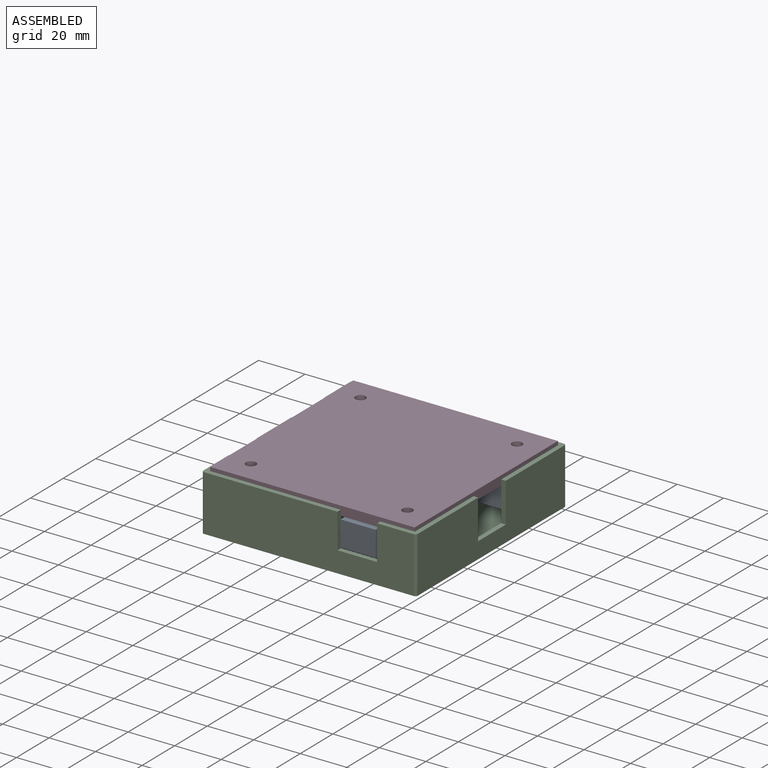
[diagram: assembled view]
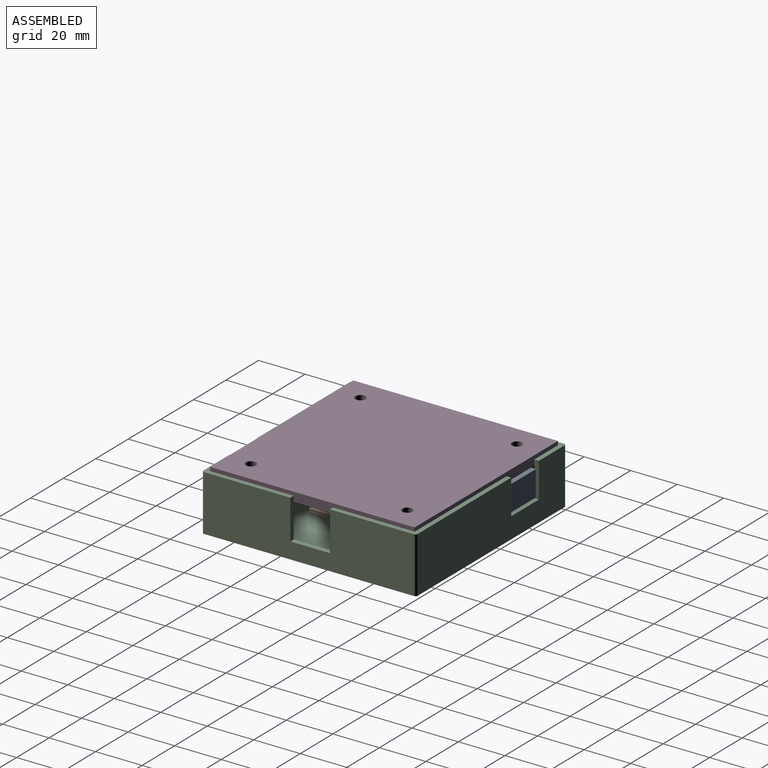
[diagram: assembled view, second angle]
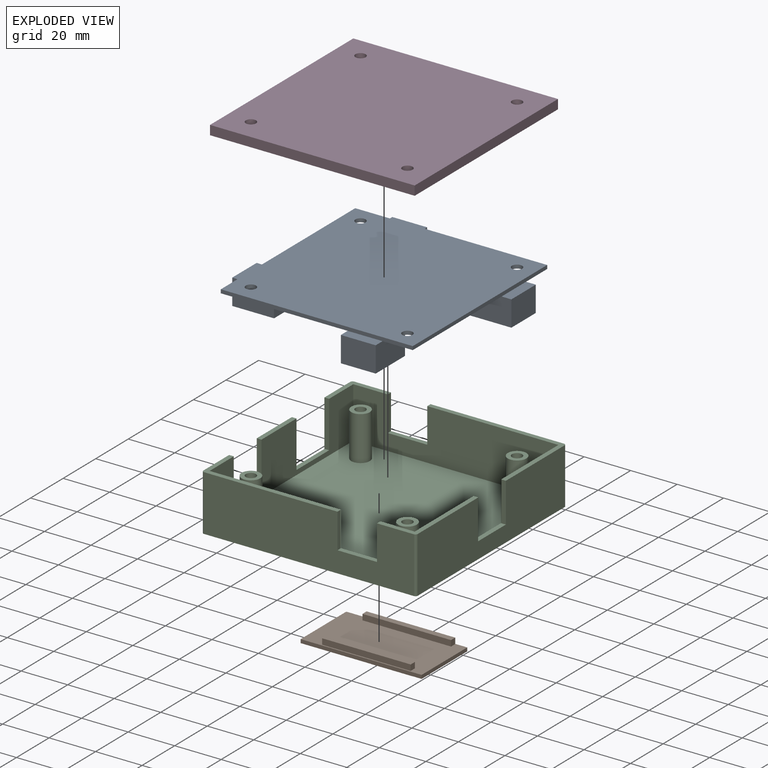
[diagram: exploded view]
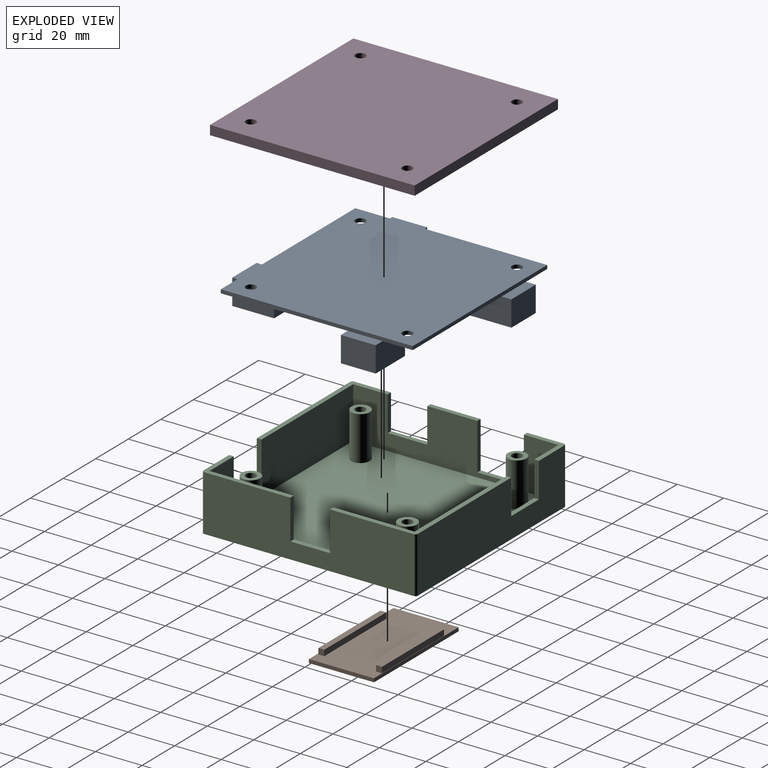
[diagram: exploded view, second angle]
ASSEMBLY  parts=4 mates=3
PART A: 104 faces, bbox 91x91x12.6 mm
  f0: plane 82.55x82.55mm, normal (0,0,1), area 5732.1mm2, adj f1,f2,f3,f4,f5,f6,f7,f8
  f1: plane 82.55x1.55mm, normal (-1,0,0), area 128mm2, adj f0,f2,f7,f9,f21
  f2: plane 82.55x1.55mm, normal (0,-1,0), area 128mm2, adj f0,f1,f3,f9,f15
  f3: plane 82.55x1.55mm, normal (1,0,0), area 128mm2, adj f0,f2,f7,f9,f28
  f4: cylinder r=2.2mm len=4.4mm, axis (0,0,1), area 21.4mm2, adj f0,f9
  f5: cylinder r=2.2mm len=4.4mm, axis (0,0,1), area 21.4mm2, adj f0,f9
  f6: cylinder r=2.2mm len=4.4mm, axis (0,0,1), area 21.4mm2, adj f0,f9
  f7: plane 82.55x1.55mm, normal (0,1,0), area 128mm2, adj f0,f1,f3,f9,f22
  f8: cylinder r=2.2mm len=4.4mm, axis (0,0,1), area 21.4mm2, adj f0,f9
  f9: plane 82.55x82.55mm, normal (0,0,-1), area 6753.7mm2, adj f1,f2,f3,f4,f5,f6,f7,f8
  f10: plane 15x11mm, normal (0,1,0), area 165mm2, adj f0,f11,f13,f14
  f11: plane 18x11mm, normal (-1,0,0), area 198mm2, adj f0,f10,f12,f14,f15
  f12: plane 15x11mm, normal (0,-1,0), area 165mm2, adj f11,f13,f14,f15
  f13: plane 18x11mm, normal (1,0,0), area 198mm2, adj f0,f10,f12,f14,f15
  f14: plane 18x15mm, normal (0,0,1), area 270mm2, adj f10,f11,f12,f13
  f15: plane 15x4.2mm, normal (0,0,-1), area 63mm2, adj f2,f11,f12,f13
  f16: plane 15x11mm, normal (1,0,0), area 165mm2, adj f0,f17,f19,f20
  f17: plane 18x11mm, normal (0,1,0), area 198mm2, adj f0,f16,f18,f20,f21
  f18: plane 15x11mm, normal (-1,0,0), area 165mm2, adj f17,f19,f20,f21
  f19: plane 18x11mm, normal (0,-1,0), area 198mm2, adj f0,f16,f18,f20,f21
  f20: plane 18x15mm, normal (0,0,1), area 270mm2, adj f16,f17,f18,f19
  f21: plane 15x4.2mm, normal (0,0,-1), area 63mm2, adj f1,f17,f18,f19
  f22: plane 15x4.2mm, normal (0,0,-1), area 63mm2, adj f7,f23,f25,f26
  f23: plane 18x11mm, normal (-1,0,0), area 198mm2, adj f0,f22,f24,f26,f27
  f24: plane 15x11mm, normal (0,-1,0), area 165mm2, adj f0,f23,f25,f27
  f25: plane 18x11mm, normal (1,0,0), area 198mm2, adj f0,f22,f24,f26,f27
  f26: plane 15x11mm, normal (0,1,0), area 165mm2, adj f22,f23,f25,f27
  f27: plane 18x15mm, normal (0,0,1), area 270mm2, adj f23,f24,f25,f26
  f28: plane 15x4.2mm, normal (0,0,-1), area 63mm2, adj f3,f29,f31,f32
  f29: plane 18x11mm, normal (0,1,0), area 198mm2, adj f0,f28,f30,f32,f33
  f30: plane 15x11mm, normal (-1,0,0), area 165mm2, adj f0,f29,f31,f33
  f31: plane 18x11mm, normal (0,-1,0), area 198mm2, adj f0,f28,f30,f32,f33
  f32: plane 15x11mm, normal (1,0,0), area 165mm2, adj f28,f29,f31,f33
  f33: plane 18x15mm, normal (0,0,1), area 270mm2, adj f29,f30,f31,f32
  f34: plane 8x2.54mm, normal (1,0,0), area 20.3mm2, adj f0,f35,f51,f53
  f35: plane 38.1x8mm, normal (0,1,0), area 304.8mm2, adj f0,f34,f36,f53
  f36: plane 8x2.54mm, normal (-1,0,0), area 20.3mm2, adj f0,f35,f51,f53
  f37: cylinder r=0.5mm len=6.5mm, axis (0,0,-1), area 20.4mm2, adj f53,f75
  f38: cylinder r=0.5mm len=6.5mm, axis (0,0,-1), area 20.4mm2, adj f53,f76
  f39: cylinder r=0.5mm len=6.5mm, axis (0,0,-1), area 20.4mm2, adj f53,f77
  f40: cylinder r=0.5mm len=6.5mm, axis (0,0,-1), area 20.4mm2, adj f53,f78
  f41: cylinder r=0.5mm len=6.5mm, axis (0,0,-1), area 20.4mm2, adj f53,f79
  f42: cylinder r=0.5mm len=6.5mm, axis (0,0,-1), area 20.4mm2, adj f53,f80
  f43: cylinder r=0.5mm len=6.5mm, axis (0,0,-1), area 20.4mm2, adj f53,f81
  f44: cylinder r=0.5mm len=6.5mm, axis (0,0,-1), area 20.4mm2, adj f53,f82
  f45: cylinder r=0.5mm len=6.5mm, axis (0,0,-1), area 20.4mm2, adj f53,f83
  f46: cylinder r=0.5mm len=6.5mm, axis (0,0,-1), area 20.4mm2, adj f53,f84
  f47: cylinder r=0.5mm len=6.5mm, axis (0,0,-1), area 20.4mm2, adj f53,f85
  f48: cylinder r=0.5mm len=6.5mm, axis (0,0,-1), area 20.4mm2, adj f53,f86
  f49: cylinder r=0.5mm len=6.5mm, axis (0,0,-1), area 20.4mm2, adj f53,f87
  f50: cylinder r=0.5mm len=6.5mm, axis (0,0,-1), area 20.4mm2, adj f53,f88
  f51: plane 38.1x8mm, normal (0,-1,0), area 304.8mm2, adj f0,f34,f36,f53
  f52: cylinder r=0.5mm len=6.5mm, axis (0,0,-1), area 20.4mm2, adj f53,f74
  f53: plane 38.1x2.54mm, normal (0,0,1), area 85mm2, adj f34,f35,f36,f37,f38,f39,f40,f41
  f54: plane 38.1x8mm, normal (0,-1,0), area 304.8mm2, adj f0,f55,f70,f73
  f55: plane 8x2.54mm, normal (1,0,0), area 20.3mm2, adj f0,f54,f56,f73
  f56: plane 38.1x8mm, normal (0,1,0), area 304.8mm2, adj f0,f55,f70,f73
  f57: cylinder r=0.5mm len=6.5mm, axis (0,0,-1), area 20.4mm2, adj f73,f91
  f58: cylinder r=0.5mm len=6.5mm, axis (0,0,-1), area 20.4mm2, adj f73,f96
  f59: cylinder r=0.5mm len=6.5mm, axis (0,0,-1), area 20.4mm2, adj f73,f97
  f60: cylinder r=0.5mm len=6.5mm, axis (0,0,-1), area 20.4mm2, adj f73,f90
  f61: cylinder r=0.5mm len=6.5mm, axis (0,0,-1), area 20.4mm2, adj f73,f101
  f62: cylinder r=0.5mm len=6.5mm, axis (0,0,-1), area 20.4mm2, adj f73,f92
  f63: cylinder r=0.5mm len=6.5mm, axis (0,0,-1), area 20.4mm2, adj f73,f99
  f64: cylinder r=0.5mm len=6.5mm, axis (0,0,-1), area 20.4mm2, adj f73,f102
  f65: cylinder r=0.5mm len=6.5mm, axis (0,0,-1), area 20.4mm2, adj f73,f95
  f66: cylinder r=0.5mm len=6.5mm, axis (0,0,-1), area 20.4mm2, adj f73,f94
  f67: cylinder r=0.5mm len=6.5mm, axis (0,0,-1), area 20.4mm2, adj f73,f89
  f68: cylinder r=0.5mm len=6.5mm, axis (0,0,-1), area 20.4mm2, adj f73,f100
  f69: cylinder r=0.5mm len=6.5mm, axis (0,0,-1), area 20.4mm2, adj f73,f93
  f70: plane 8x2.54mm, normal (-1,0,0), area 20.3mm2, adj f0,f54,f56,f73
  f71: cylinder r=0.5mm len=6.5mm, axis (0,0,-1), area 20.4mm2, adj f73,f98
  f72: cylinder r=0.5mm len=6.5mm, axis (0,0,-1), area 20.4mm2, adj f73,f103
  f73: plane 38.1x2.54mm, normal (0,0,1), area 85mm2, adj f54,f55,f56,f57,f58,f59,f60,f61
  f74: plane 1x1mm, normal (0,0,1), area 0.8mm2, adj f52
  f75: plane 1x1mm, normal (0,0,1), area 0.8mm2, adj f37
  f76: plane 1x1mm, normal (0,0,1), area 0.8mm2, adj f38
  f77: plane 1x1mm, normal (0,0,1), area 0.8mm2, adj f39
  f78: plane 1x1mm, normal (0,0,1), area 0.8mm2, adj f40
  f79: plane 1x1mm, normal (0,0,1), area 0.8mm2, adj f41
  f80: plane 1x1mm, normal (0,0,1), area 0.8mm2, adj f42
  f81: plane 1x1mm, normal (0,0,1), area 0.8mm2, adj f43
  f82: plane 1x1mm, normal (0,0,1), area 0.8mm2, adj f44
  f83: plane 1x1mm, normal (0,0,1), area 0.8mm2, adj f45
  f84: plane 1x1mm, normal (0,0,1), area 0.8mm2, adj f46
  f85: plane 1x1mm, normal (0,0,1), area 0.8mm2, adj f47
  f86: plane 1x1mm, normal (0,0,1), area 0.8mm2, adj f48
  f87: plane 1x1mm, normal (0,0,1), area 0.8mm2, adj f49
  f88: plane 1x1mm, normal (0,0,1), area 0.8mm2, adj f50
  f89: plane 1x1mm, normal (0,0,1), area 0.8mm2, adj f67
  f90: plane 1x1mm, normal (0,0,1), area 0.8mm2, adj f60
  f91: plane 1x1mm, normal (0,0,1), area 0.8mm2, adj f57
  f92: plane 1x1mm, normal (0,0,1), area 0.8mm2, adj f62
  f93: plane 1x1mm, normal (0,0,1), area 0.8mm2, adj f69
  f94: plane 1x1mm, normal (0,0,1), area 0.8mm2, adj f66
  f95: plane 1x1mm, normal (0,0,1), area 0.8mm2, adj f65
  f96: plane 1x1mm, normal (0,0,1), area 0.8mm2, adj f58
  f97: plane 1x1mm, normal (0,0,1), area 0.8mm2, adj f59
  f98: plane 1x1mm, normal (0,0,1), area 0.8mm2, adj f71
  f99: plane 1x1mm, normal (0,0,1), area 0.8mm2, adj f63
  f100: plane 1x1mm, normal (0,0,1), area 0.8mm2, adj f68
  f101: plane 1x1mm, normal (0,0,1), area 0.8mm2, adj f61
  f102: plane 1x1mm, normal (0,0,1), area 0.8mm2, adj f64
  f103: plane 1x1mm, normal (0,0,1), area 0.8mm2, adj f72
PART B: 25 faces, bbox 52x28x7.5 mm
  f0: plane 52x28mm, normal (0,0,1), area 1262.5mm2, adj f1,f2,f3,f4,f6,f7,f8,f9
  f1: plane 52x1.55mm, normal (0,-1,0), area 80.6mm2, adj f0,f2,f4,f5
  f2: plane 28x1.55mm, normal (1,0,0), area 43.4mm2, adj f0,f1,f3,f5
  f3: plane 52x1.55mm, normal (0,1,0), area 80.6mm2, adj f0,f2,f4,f5
  f4: plane 28x4mm, normal (-1,0,0), area 60.5mm2, adj f0,f1,f3,f5,f21,f22,f24
  f5: plane 52x28mm, normal (0,0,-1), area 1133mm2, adj f1,f2,f3,f4,f17,f18,f19,f20
  f6: plane 2.54x2.5mm, normal (1,0,0), area 6.4mm2, adj f0,f7,f9,f10
  f7: plane 38.1x2.5mm, normal (0,1,0), area 95.3mm2, adj f0,f6,f8,f10
  f8: plane 2.54x2.5mm, normal (-1,0,0), area 6.4mm2, adj f0,f7,f9,f10
  f9: plane 38.1x2.5mm, normal (0,-1,0), area 95.3mm2, adj f0,f6,f8,f10
  f10: plane 38.1x2.54mm, normal (0,0,1), area 96.8mm2, adj f6,f7,f8,f9
  f11: plane 38.1x2.5mm, normal (0,1,0), area 95.3mm2, adj f0,f12,f14,f15
  f12: plane 2.54x2.5mm, normal (-1,0,0), area 6.3mm2, adj f0,f11,f13,f15
  f13: plane 38.1x2.5mm, normal (0,-1,0), area 95.3mm2, adj f0,f12,f14,f15
  f14: plane 2.54x2.5mm, normal (1,0,0), area 6.3mm2, adj f0,f11,f13,f15
  f15: plane 38.1x2.54mm, normal (0,0,1), area 96.8mm2, adj f11,f12,f13,f14
  f16: plane 18x16mm, normal (0,0,-1), area 288mm2, adj f17,f18,f19,f20
  f17: plane 16x3.45mm, normal (1,0,0), area 55.2mm2, adj f5,f16,f18,f20
  f18: plane 18x3.45mm, normal (0,-1,0), area 62.1mm2, adj f5,f16,f17,f19
  f19: plane 16x3.45mm, normal (-1,0,0), area 55.2mm2, adj f5,f16,f18,f20
  f20: plane 18x3.45mm, normal (0,1,0), area 62.1mm2, adj f5,f16,f17,f19
  f21: plane 5x2.45mm, normal (0,1,0), area 12.2mm2, adj f4,f5,f23,f24
  f22: plane 5x2.45mm, normal (0,-1,0), area 12.2mm2, adj f4,f5,f23,f24
  f23: plane 7x2.45mm, normal (1,0,0), area 17.1mm2, adj f5,f21,f22,f24
  f24: plane 7x5mm, normal (0,0,-1), area 35mm2, adj f4,f21,f22,f23
PART C: 46 faces, bbox 92.2x92.2x24 mm
  f0: plane 58.38x37.1mm, normal (0,0,1), area 186.7mm2, adj f2,f9,f10,f13,f30,f40,f44
  f1: plane 16.85x16.83mm, normal (0,0,1), area 63.1mm2, adj f2,f5,f10,f11,f31,f36,f42
  f2: plane 90.2x24mm, normal (0,1,0), area 1909.8mm2, adj f0,f1,f8,f30,f31,f40,f41,f42
  f3: plane 58.38x16.83mm, normal (0,0,1), area 146.2mm2, adj f5,f11,f12,f14,f28,f32,f39
  f4: plane 21.53x2mm, normal (0,0,1), area 43.1mm2, adj f5,f11,f35,f37
  f5: plane 90.2x24mm, normal (-1,0,0), area 1509.8mm2, adj f1,f3,f4,f8,f31,f32,f34,f35
  f6: plane 38.1x16.83mm, normal (0,0,1), area 105.6mm2, adj f9,f12,f13,f14,f29,f33,f43
  f7: plane 88.2x88.2mm, normal (0,0,1), area 7578.2mm2, adj f9,f10,f11,f12,f16,f18,f22,f24
  f8: plane 92.2x92.2mm, normal (0,0,-1), area 8439.2mm2, adj f2,f5,f13,f14,f15,f19,f21,f25
  f9: plane 88.2x22mm, normal (-1,0,0), area 1651.4mm2, adj f0,f6,f7,f10,f12,f43,f44,f45
  f10: plane 88.2x22mm, normal (0,-1,0), area 1685.4mm2, adj f0,f1,f7,f9,f11,f40,f41,f42
  f11: plane 88.2x22mm, normal (1,0,0), area 1285.4mm2, adj f1,f3,f4,f7,f10,f12,f34,f35
  f12: plane 88.2x22mm, normal (0,1,0), area 1685.4mm2, adj f3,f6,f7,f9,f11,f27,f28,f29
  f13: plane 90.2x24mm, normal (1,0,0), area 1875.8mm2, adj f0,f6,f8,f30,f33,f43,f44,f45
  f14: plane 90.2x24mm, normal (0,-1,0), area 1909.8mm2, adj f3,f6,f8,f27,f28,f29,f32,f33
  f15: cylinder r=2.2mm len=21mm, axis (0,0,-1), area 290.3mm2, adj f8,f17
  f16: cylinder r=4mm len=19mm, axis (0,0,-1), area 477.5mm2, adj f7,f17
  f17: plane 8x8mm, normal (0,0,1), area 35.1mm2, adj f15,f16
  f18: cylinder r=4mm len=19mm, axis (0,0,-1), area 477.5mm2, adj f7,f20
  f19: cylinder r=2.2mm len=21mm, axis (0,0,-1), area 290.3mm2, adj f8,f20
  f20: plane 8x8mm, normal (0,0,1), area 35.1mm2, adj f18,f19
  f21: cylinder r=2.2mm len=21mm, axis (0,0,-1), area 290.3mm2, adj f8,f23
  f22: cylinder r=4mm len=19mm, axis (0,0,-1), area 477.5mm2, adj f7,f23
  f23: plane 8x8mm, normal (0,0,1), area 35.1mm2, adj f21,f22
  f24: cylinder r=4mm len=19mm, axis (0,0,-1), area 477.5mm2, adj f7,f26
  f25: cylinder r=2.2mm len=21mm, axis (0,0,-1), area 290.3mm2, adj f8,f26
  f26: plane 8x8mm, normal (0,0,1), area 35.1mm2, adj f24,f25
  f27: plane 17x2mm, normal (0,0,1), area 34mm2, adj f12,f14,f28,f29
  f28: plane 15x2mm, normal (1,0,0), area 30mm2, adj f3,f12,f14,f27
  f29: plane 15x2mm, normal (-1,0,0), area 30mm2, adj f6,f12,f14,f27
  f30: cylinder r=1mm len=24mm, axis (0,0,1), area 37.7mm2, adj f0,f2,f8,f13
  f31: cylinder r=1mm len=24mm, axis (0,0,-1), area 37.7mm2, adj f1,f2,f5,f8
  f32: cylinder r=1mm len=24mm, axis (0,0,1), area 37.7mm2, adj f3,f5,f8,f14
  f33: cylinder r=1mm len=24mm, axis (0,0,-1), area 37.7mm2, adj f6,f8,f13,f14
  f34: plane 20x2mm, normal (0,0,1), area 40mm2, adj f5,f11,f35,f36
  f35: plane 20x2mm, normal (0,1,0), area 40mm2, adj f4,f5,f11,f34
  f36: plane 20x2mm, normal (0,-1,0), area 40mm2, adj f1,f5,f11,f34
  f37: plane 15x2mm, normal (0,-1,0), area 30mm2, adj f4,f5,f11,f38
  f38: plane 17x2mm, normal (0,0,1), area 34mm2, adj f5,f11,f37,f39
  f39: plane 15x2mm, normal (0,1,0), area 30mm2, adj f3,f5,f11,f38
  f40: plane 15x2mm, normal (-1,0,0), area 30mm2, adj f0,f2,f10,f41
  f41: plane 17x2mm, normal (0,0,1), area 34mm2, adj f2,f10,f40,f42
  f42: plane 15x2mm, normal (1,0,0), area 30mm2, adj f1,f2,f10,f41
  f43: plane 17x2mm, normal (0,1,0), area 34mm2, adj f6,f9,f13,f45
  f44: plane 17x2mm, normal (0,-1,0), area 34mm2, adj f0,f9,f13,f45
  f45: plane 17x2mm, normal (0,0,1), area 34mm2, adj f9,f13,f43,f44
PART D: 23 faces, bbox 88x88x4 mm
  f0: plane 84x84mm, normal (0,0,1), area 6854.9mm2, adj f2,f3,f4,f5,f12,f14,f18,f20
  f1: plane 88x88mm, normal (0,0,-1), area 7683.2mm2, adj f6,f7,f8,f9,f11,f15,f17,f21
  f2: plane 84x2mm, normal (-1,0,0), area 168mm2, adj f0,f3,f5,f10
  f3: plane 84x2mm, normal (0,-1,0), area 168mm2, adj f0,f2,f4,f10
  f4: plane 84x2mm, normal (1,0,0), area 168mm2, adj f0,f3,f5,f10
  f5: plane 84x2mm, normal (0,1,0), area 168mm2, adj f0,f2,f4,f10
  f6: plane 88x4mm, normal (1,0,0), area 352mm2, adj f1,f7,f9,f10
  f7: plane 88x4mm, normal (0,1,0), area 352mm2, adj f1,f6,f8,f10
  f8: plane 88x4mm, normal (-1,0,0), area 352mm2, adj f1,f7,f9,f10
  f9: plane 88x4mm, normal (0,-1,0), area 352mm2, adj f1,f6,f8,f10
  f10: plane 88x88mm, normal (0,0,1), area 688mm2, adj f2,f3,f4,f5,f6,f7,f8,f9
  f11: cylinder r=2.2mm len=4.4mm, axis (0,0,-1), area 41.5mm2, adj f1,f13
  f12: cylinder r=4mm len=8mm, axis (0,0,-1), area 25.1mm2, adj f0,f13
  f13: plane 8x8mm, normal (0,0,1), area 35.1mm2, adj f11,f12
  f14: cylinder r=4mm len=8mm, axis (0,0,-1), area 25.1mm2, adj f0,f16
  f15: cylinder r=2.2mm len=4.4mm, axis (0,0,-1), area 41.5mm2, adj f1,f16
  f16: plane 8x8mm, normal (0,0,1), area 35.1mm2, adj f14,f15
  f17: cylinder r=2.2mm len=4.4mm, axis (0,0,-1), area 41.5mm2, adj f1,f19
  f18: cylinder r=4mm len=8mm, axis (0,0,-1), area 25.1mm2, adj f0,f19
  f19: plane 8x8mm, normal (0,0,1), area 35.1mm2, adj f17,f18
  f20: cylinder r=4mm len=8mm, axis (0,0,-1), area 25.1mm2, adj f0,f22
  f21: cylinder r=2.2mm len=4.4mm, axis (0,0,-1), area 41.5mm2, adj f1,f22
  f22: plane 8x8mm, normal (0,0,1), area 35.1mm2, adj f20,f21
PLACE A rot(axis=(1,0,0),180deg) t=(0,0,20)mm
PLACE B t=(0.03,-0.08,9.5)mm
PLACE C t=(0,0,-1)mm
PLACE D rot(axis=(1,0,0),180deg) t=(0,0,24.55)mm
MATE fastened A.f8 <-> C.f24  axis (0,0,-1) through (-33.66,33.65,20)mm
MATE fastened A.f72 <-> B.f10  axis (0,0,-1) through (1.91,12.52,12)mm
MATE fastened D.f11 <-> A.f8  axis (0,0,-1) through (-33.66,33.65,21.55)mm
